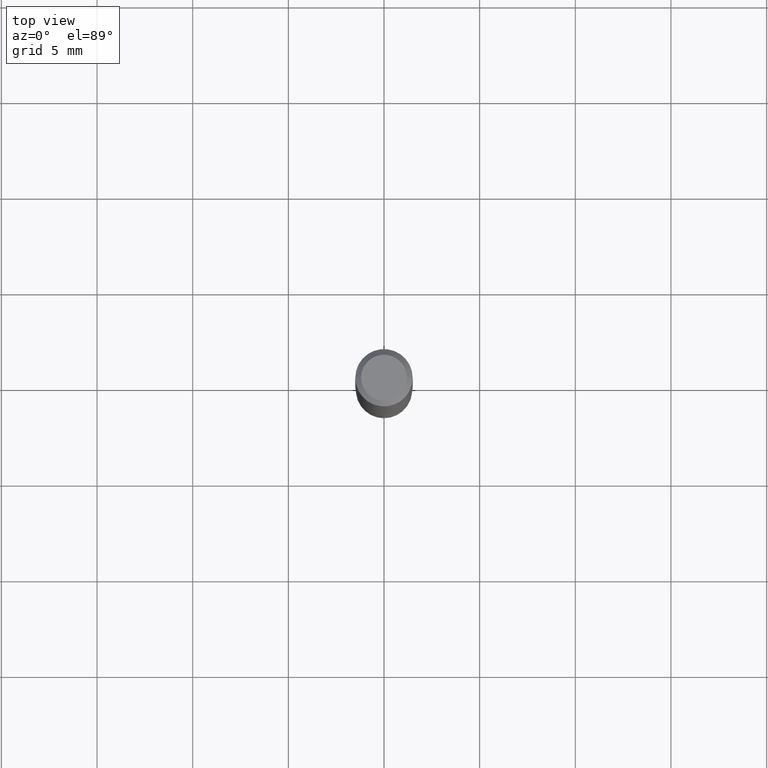
[diagram: clean part render]
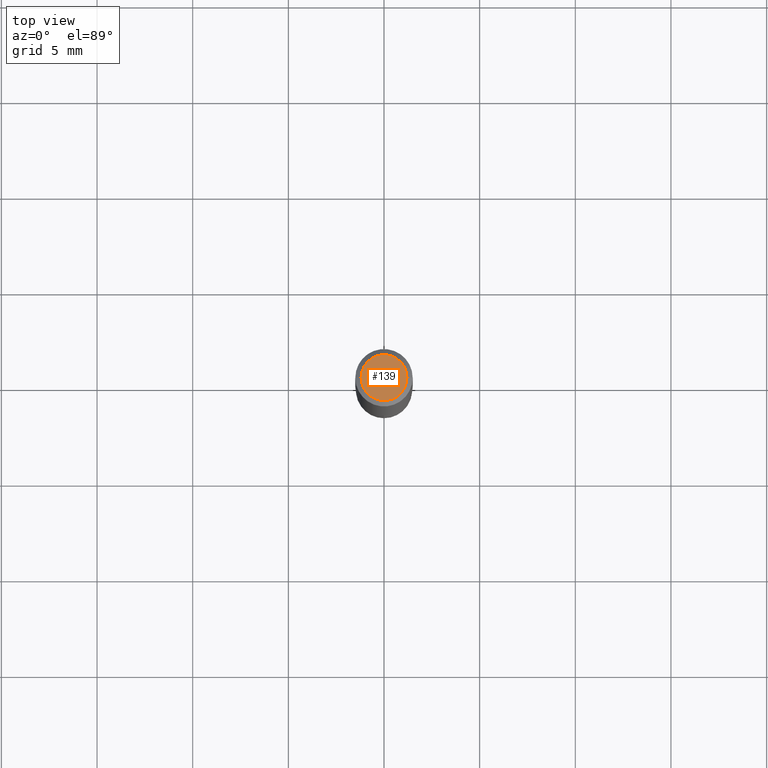
[diagram: same view with one face highlighted and labeled with its STEP entity id]
A machine part, top view. The second image highlights one B-rep face of the part: STEP entity #139.
In plain terms, the highlighted planar face has unit normal (0, -0, -1).
Its self-contained STEP definition (entity closure, byte-faithful):
#5 = CIRCLE ( 'NONE', #57, 0.04724000000000000421 ) ;
#11 = DIRECTION ( 'NONE',  ( 1.000000000000000000, -6.982962677686266711E-15, 4.876185090822587894E-29 ) ) ;
#30 = EDGE_CURVE ( 'NONE', #106, #33, #442, .T. ) ;
#33 = VERTEX_POINT ( 'NONE', #80 ) ;
#38 = FACE_OUTER_BOUND ( 'NONE', #102, .T. ) ;
#41 = AXIS2_PLACEMENT_3D ( 'NONE', #83, #76, #246 ) ;
#57 = AXIS2_PLACEMENT_3D ( 'NONE', #254, #288, #364 ) ;
#76 = DIRECTION ( 'NONE',  ( 2.438088387897960049E-29, -3.491481338843145188E-15, -1.000000000000000000 ) ) ;
#80 = CARTESIAN_POINT ( 'NONE',  ( -0.04724000000000000421, 3.504923541997677355E-16, -3.380025165670481712E-19 ) ) ;
#83 = CARTESIAN_POINT ( 'NONE',  ( 4.132873053354867254E-48, -5.900647395337818946E-34, -1.690012582823346072E-19 ) ) ;
#102 = EDGE_LOOP ( 'NONE', ( #112, #229 ) ) ;
#106 = VERTEX_POINT ( 'NONE', #307 ) ;
#112 = ORIENTED_EDGE ( 'NONE', *, *, #225, .T. ) ;
#121 = PLANE ( 'NONE',  #41 ) ;
#139 = ADVANCED_FACE ( 'NONE', ( #38 ), #121, .F. ) ;
#197 = AXIS2_PLACEMENT_3D ( 'NONE', #425, #382, #11 ) ;
#225 = EDGE_CURVE ( 'NONE', #33, #106, #5, .T. ) ;
#229 = ORIENTED_EDGE ( 'NONE', *, *, #30, .T. ) ;
#246 = DIRECTION ( 'NONE',  ( -1.000000000000000000, 6.982962677686265922E-15, -4.876176775795935793E-29 ) ) ;
#254 = CARTESIAN_POINT ( 'NONE',  ( 8.265746106709734507E-48, -1.180129479067563789E-33, -3.380025165646692144E-19 ) ) ;
#288 = DIRECTION ( 'NONE',  ( -2.445468806185136597E-29, 3.491481338843145583E-15, 1.000000000000000000 ) ) ;
#307 = CARTESIAN_POINT ( 'NONE',  ( 0.04724000000000000421, -3.852183633974369345E-16, -3.380025165621689721E-19 ) ) ;
#364 = DIRECTION ( 'NONE',  ( 1.000000000000000000, -6.982962677686266711E-15, 4.876185090822587894E-29 ) ) ;
#382 = DIRECTION ( 'NONE',  ( -2.445468806185136597E-29, 3.491481338843145583E-15, 1.000000000000000000 ) ) ;
#425 = CARTESIAN_POINT ( 'NONE',  ( 8.265746106709734507E-48, -1.180129479067563789E-33, -3.380025165646692144E-19 ) ) ;
#442 = CIRCLE ( 'NONE', #197, 0.04724000000000000421 ) ;